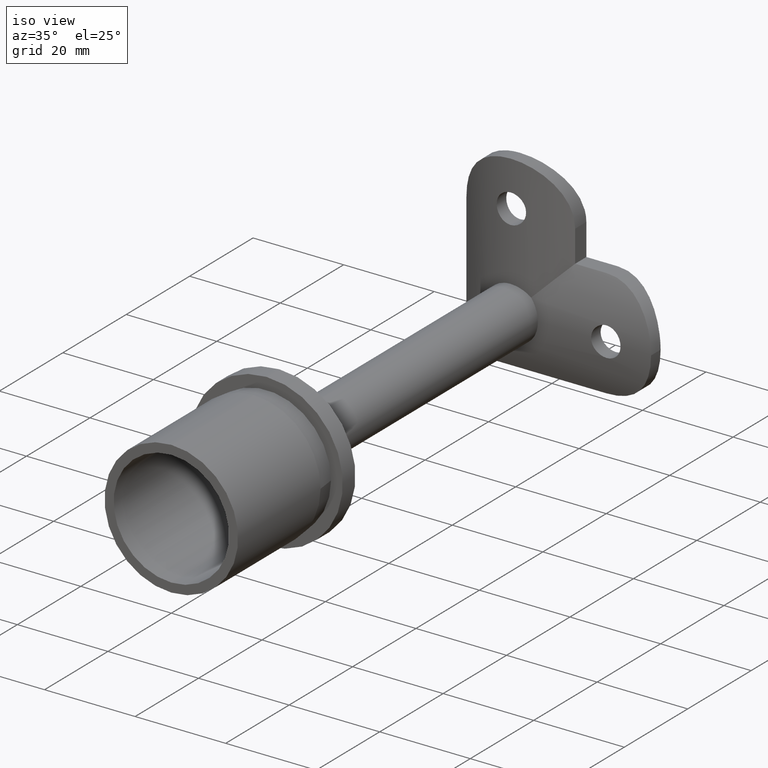
[diagram: clean part render]
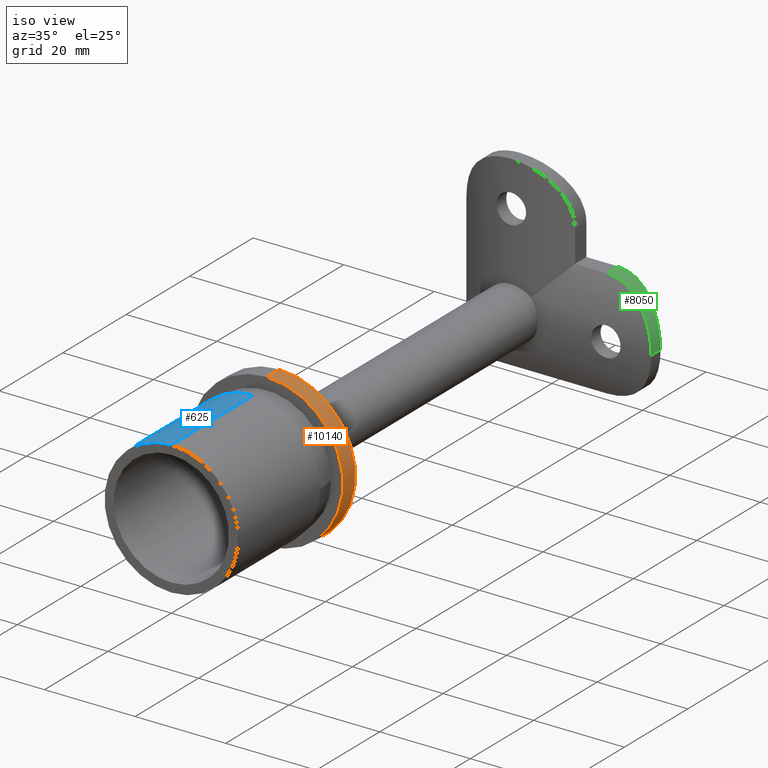
[diagram: same view with three faces highlighted in distinct colors, each labeled with its STEP entity id]
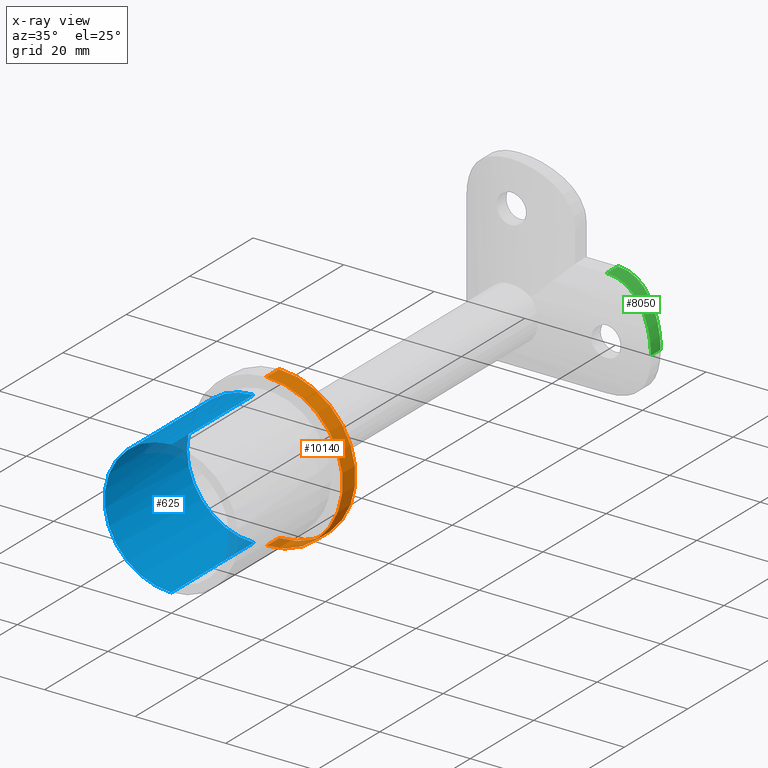
[diagram: x-ray of the same camera — body ghosted, the three highlighted faces saturated]
A machine part, iso view with three faces highlighted in distinct colors.
The next image is the same camera in x-ray (body ghosted, the three faces saturated) — at least one of them is partly hidden behind the body in this view.
Their STEP definitions:

[orange] entity #10140 — the highlighted cylindrical surface (partial cylindrical patch) has radius 16.85 mm, axis along (-0, -1, -0).
#1167 = ORIENTED_EDGE ( 'NONE', *, *, #6934, .F. ) ;
#1439 = DIRECTION ( 'NONE',  ( 0.0000000000000000000, 0.0000000000000000000, -1.000000000000000000 ) ) ;
#1588 = AXIS2_PLACEMENT_3D ( 'NONE', #6071, #2200, #1439 ) ;
#2200 = DIRECTION ( 'NONE',  ( -0.0000000000000000000, -1.000000000000000000, -0.0000000000000000000 ) ) ;
#2437 = DIRECTION ( 'NONE',  ( 0.0000000000000000000, 0.0000000000000000000, -1.000000000000000000 ) ) ;
#2650 = EDGE_CURVE ( 'NONE', #4387, #10033, #5694, .T. ) ;
#2747 = CIRCLE ( 'NONE', #1588, 16.85000000000000100 ) ;
#3384 = DIRECTION ( 'NONE',  ( -0.0000000000000000000, -1.000000000000000000, -0.0000000000000000000 ) ) ;
#3436 = ORIENTED_EDGE ( 'NONE', *, *, #2650, .F. ) ;
#3674 = CARTESIAN_POINT ( 'NONE',  ( 0.0000000000000000000, 30.00000000000000000, -16.85000000000000100 ) ) ;
#3728 = ORIENTED_EDGE ( 'NONE', *, *, #12149, .T. ) ;
#4329 = DIRECTION ( 'NONE',  ( -0.0000000000000000000, -1.000000000000000000, -0.0000000000000000000 ) ) ;
#4387 = VERTEX_POINT ( 'NONE', #5163 ) ;
#4539 = ORIENTED_EDGE ( 'NONE', *, *, #5465, .T. ) ;
#4554 = DIRECTION ( 'NONE',  ( -0.0000000000000000000, -1.000000000000000000, -0.0000000000000000000 ) ) ;
#4966 = AXIS2_PLACEMENT_3D ( 'NONE', #10147, #4329, #2437 ) ;
#5163 = CARTESIAN_POINT ( 'NONE',  ( 0.0000000000000000000, 34.00000000000000000, -16.85000000000000100 ) ) ;
#5465 = EDGE_CURVE ( 'NONE', #4387, #7723, #5777, .T. ) ;
#5694 = LINE ( 'NONE', #3674, #7503 ) ;
#5777 = CIRCLE ( 'NONE', #4966, 16.85000000000000100 ) ;
#6071 = CARTESIAN_POINT ( 'NONE',  ( 0.0000000000000000000, 30.00000000000000000, 0.0000000000000000000 ) ) ;
#6934 = EDGE_CURVE ( 'NONE', #10033, #10434, #2747, .T. ) ;
#7110 = CARTESIAN_POINT ( 'NONE',  ( 2.063529856563290200E-015, 30.00000000000000000, 16.85000000000000100 ) ) ;
#7313 = CARTESIAN_POINT ( 'NONE',  ( 0.0000000000000000000, 30.00000000000000000, 0.0000000000000000000 ) ) ;
#7503 = VECTOR ( 'NONE', #7510, 1000.000000000000000 ) ;
#7510 = DIRECTION ( 'NONE',  ( -0.0000000000000000000, -1.000000000000000000, -0.0000000000000000000 ) ) ;
#7723 = VERTEX_POINT ( 'NONE', #8806 ) ;
#7832 = CARTESIAN_POINT ( 'NONE',  ( 0.0000000000000000000, 30.00000000000000000, -16.85000000000000100 ) ) ;
#8247 = LINE ( 'NONE', #7110, #11093 ) ;
#8272 = FACE_OUTER_BOUND ( 'NONE', #12148, .T. ) ;
#8312 = AXIS2_PLACEMENT_3D ( 'NONE', #7313, #4554, #12192 ) ;
#8806 = CARTESIAN_POINT ( 'NONE',  ( 2.063529856563290200E-015, 34.00000000000000000, 16.85000000000000100 ) ) ;
#9526 = CARTESIAN_POINT ( 'NONE',  ( 2.063529856563290200E-015, 30.00000000000000000, 16.85000000000000100 ) ) ;
#9613 = CYLINDRICAL_SURFACE ( 'NONE', #8312, 16.85000000000000100 ) ;
#10033 = VERTEX_POINT ( 'NONE', #7832 ) ;
#10140 = ADVANCED_FACE ( 'NONE', ( #8272 ), #9613, .T. ) ;
#10147 = CARTESIAN_POINT ( 'NONE',  ( 0.0000000000000000000, 34.00000000000000000, 0.0000000000000000000 ) ) ;
#10434 = VERTEX_POINT ( 'NONE', #9526 ) ;
#11093 = VECTOR ( 'NONE', #3384, 1000.000000000000000 ) ;
#12148 = EDGE_LOOP ( 'NONE', ( #4539, #3728, #1167, #3436 ) ) ;
#12149 = EDGE_CURVE ( 'NONE', #7723, #10434, #8247, .T. ) ;
#12192 = DIRECTION ( 'NONE',  ( 0.0000000000000000000, 0.0000000000000000000, -1.000000000000000000 ) ) ;

[blue] entity #625 — the highlighted cylindrical surface (partial cylindrical patch) has radius 14.75 mm, axis along (-0, -1, -0).
#72 = ORIENTED_EDGE ( 'NONE', *, *, #11321, .T. ) ;
#367 = EDGE_LOOP ( 'NONE', ( #7511, #8498, #1817, #1312, #72 ) ) ;
#541 = CARTESIAN_POINT ( 'NONE',  ( 4.898587196589415800E-016, 25.99999999999999600, 0.0000000000000000000 ) ) ;
#625 = ADVANCED_FACE ( 'NONE', ( #7318 ), #7172, .T. ) ;
#698 = CARTESIAN_POINT ( 'NONE',  ( 0.0000000000000000000, 30.00000000000000000, 0.0000000000000000000 ) ) ;
#1312 = ORIENTED_EDGE ( 'NONE', *, *, #11970, .T. ) ;
#1467 = CARTESIAN_POINT ( 'NONE',  ( 1.806354028742346200E-015, 25.99999999999999600, 14.75000000000000200 ) ) ;
#1580 = VERTEX_POINT ( 'NONE', #3783 ) ;
#1794 = CARTESIAN_POINT ( 'NONE',  ( 0.0000000000000000000, 0.0000000000000000000, -14.75000000000000200 ) ) ;
#1817 = ORIENTED_EDGE ( 'NONE', *, *, #3952, .F. ) ;
#1867 = CARTESIAN_POINT ( 'NONE',  ( 0.0000000000000000000, 0.0000000000000000000, 0.0000000000000000000 ) ) ;
#1906 = DIRECTION ( 'NONE',  ( 0.0000000000000000000, 0.0000000000000000000, 1.000000000000000000 ) ) ;
#2011 = DIRECTION ( 'NONE',  ( -0.0000000000000000000, -1.000000000000000000, -0.0000000000000000000 ) ) ;
#2350 = AXIS2_PLACEMENT_3D ( 'NONE', #1867, #5697, #1906 ) ;
#2396 = VECTOR ( 'NONE', #2011, 1000.000000000000000 ) ;
#3221 = CARTESIAN_POINT ( 'NONE',  ( 1.806354028742346200E-015, 0.0000000000000000000, 14.75000000000000200 ) ) ;
#3311 = VERTEX_POINT ( 'NONE', #11909 ) ;
#3680 = DIRECTION ( 'NONE',  ( 0.0000000000000000000, 0.0000000000000000000, -1.000000000000000000 ) ) ;
#3783 = CARTESIAN_POINT ( 'NONE',  ( 0.0000000000000000000, 25.99999999999999600, -14.75000000000000200 ) ) ;
#3952 = EDGE_CURVE ( 'NONE', #1580, #3311, #10424, .T. ) ;
#4563 = CIRCLE ( 'NONE', #6748, 14.75000000000000200 ) ;
#4573 = VECTOR ( 'NONE', #5383, 1000.000000000000000 ) ;
#4869 = LINE ( 'NONE', #10165, #4573 ) ;
#4951 = LINE ( 'NONE', #8638, #2396 ) ;
#5383 = DIRECTION ( 'NONE',  ( -0.0000000000000000000, -1.000000000000000000, -0.0000000000000000000 ) ) ;
#5697 = DIRECTION ( 'NONE',  ( 0.0000000000000000000, 1.000000000000000000, 0.0000000000000000000 ) ) ;
#6111 = EDGE_CURVE ( 'NONE', #12137, #7933, #4869, .T. ) ;
#6147 = DIRECTION ( 'NONE',  ( -1.000000000000000000, -2.352167425053297400E-016, 0.0000000000000000000 ) ) ;
#6748 = AXIS2_PLACEMENT_3D ( 'NONE', #541, #11052, #11092 ) ;
#7172 = CYLINDRICAL_SURFACE ( 'NONE', #11274, 14.75000000000000200 ) ;
#7318 = FACE_OUTER_BOUND ( 'NONE', #367, .T. ) ;
#7338 = EDGE_CURVE ( 'NONE', #3311, #12137, #4563, .T. ) ;
#7511 = ORIENTED_EDGE ( 'NONE', *, *, #6111, .F. ) ;
#7769 = AXIS2_PLACEMENT_3D ( 'NONE', #7993, #8029, #6147 ) ;
#7933 = VERTEX_POINT ( 'NONE', #3221 ) ;
#7993 = CARTESIAN_POINT ( 'NONE',  ( 4.898587196589415800E-016, 25.99999999999999600, 0.0000000000000000000 ) ) ;
#8029 = DIRECTION ( 'NONE',  ( -1.224646799147353200E-016, 1.000000000000000000, -0.0000000000000000000 ) ) ;
#8498 = ORIENTED_EDGE ( 'NONE', *, *, #7338, .F. ) ;
#8638 = CARTESIAN_POINT ( 'NONE',  ( 0.0000000000000000000, 30.00000000000000000, -14.75000000000000200 ) ) ;
#8711 = VERTEX_POINT ( 'NONE', #1794 ) ;
#10165 = CARTESIAN_POINT ( 'NONE',  ( 1.806354028742346200E-015, 30.00000000000000000, 14.75000000000000200 ) ) ;
#10424 = CIRCLE ( 'NONE', #7769, 14.75000000000000200 ) ;
#11052 = DIRECTION ( 'NONE',  ( -1.224646799147353200E-016, 1.000000000000000000, -0.0000000000000000000 ) ) ;
#11092 = DIRECTION ( 'NONE',  ( -1.000000000000000000, -2.352167425053297400E-016, 0.0000000000000000000 ) ) ;
#11240 = DIRECTION ( 'NONE',  ( -0.0000000000000000000, -1.000000000000000000, -0.0000000000000000000 ) ) ;
#11259 = CIRCLE ( 'NONE', #2350, 14.75000000000000200 ) ;
#11274 = AXIS2_PLACEMENT_3D ( 'NONE', #698, #11240, #3680 ) ;
#11321 = EDGE_CURVE ( 'NONE', #8711, #7933, #11259, .T. ) ;
#11909 = CARTESIAN_POINT ( 'NONE',  ( -14.75000000000000200, 25.99999999999999600, 1.806354028742345800E-015 ) ) ;
#11970 = EDGE_CURVE ( 'NONE', #1580, #8711, #4951, .T. ) ;
#12137 = VERTEX_POINT ( 'NONE', #1467 ) ;

[green] entity #8050 — the highlighted cylindrical surface (partial cylindrical patch) has radius 12 mm, axis along (0, 1, -0).
#100 = CARTESIAN_POINT ( 'NONE',  ( 30.68443902593551100, 107.1550121062688000, 2.762361055636641400 ) ) ;
#148 = CARTESIAN_POINT ( 'NONE',  ( 30.58692257466094200, 107.2023705069698100, 3.146705672225772200 ) ) ;
#356 = CARTESIAN_POINT ( 'NONE',  ( 30.91831465222065500, 110.0465415613408300, 1.609603066487207600 ) ) ;
#689 = ORIENTED_EDGE ( 'NONE', *, *, #8454, .F. ) ;
#906 = VERTEX_POINT ( 'NONE', #10339 ) ;
#1044 = VERTEX_POINT ( 'NONE', #4541 ) ;
#1302 = CARTESIAN_POINT ( 'NONE',  ( 20.60723011561280400, 113.6663425400230900, 11.91833916329368900 ) ) ;
#1353 = CARTESIAN_POINT ( 'NONE',  ( 29.75065015629348900, 110.6829278651380800, 5.388554849466674800 ) ) ;
#1363 = ORIENTED_EDGE ( 'NONE', *, *, #5370, .F. ) ;
#1548 = CARTESIAN_POINT ( 'NONE',  ( 20.60024074777859200, 110.1381550083909200, 11.91936317759072700 ) ) ;
#2092 = CARTESIAN_POINT ( 'NONE',  ( 28.00997786817377000, 108.3358607274632000, 7.935374781564826600 ) ) ;
#2094 = CARTESIAN_POINT ( 'NONE',  ( 19.00000000000000000, 113.7231581800372300, 11.99999999999999300 ) ) ;
#2275 = CARTESIAN_POINT ( 'NONE',  ( 19.00000000000000000, 110.3615790900185700, 5.568663330206244600E-014 ) ) ;
#2438 = VECTOR ( 'NONE', #7393, 1000.000000000000000 ) ;
#2952 = CARTESIAN_POINT ( 'NONE',  ( 31.00000000000000000, 106.9999999999999100, 1.183121605080231100E-013 ) ) ;
#2972 = DIRECTION ( 'NONE',  ( -0.0000000000000000000, 1.000000000000000000, -1.862979437012538400E-014 ) ) ;
#3083 = CARTESIAN_POINT ( 'NONE',  ( 27.75066072651641500, 108.4370844586217800, 8.220336073696001800 ) ) ;
#3218 = CARTESIAN_POINT ( 'NONE',  ( 23.28381599581053900, 109.7554650673979600, 11.21608836251693300 ) ) ;
#3257 = CARTESIAN_POINT ( 'NONE',  ( 22.15743903693406100, 109.9521805400663900, 11.58394458060812800 ) ) ;
#3259 = DIRECTION ( 'NONE',  ( 0.0000000000000000000, 1.000000000000000000, -1.862979437012538400E-014 ) ) ;
#3838 = VERTEX_POINT ( 'NONE', #7606 ) ;
#4089 = CARTESIAN_POINT ( 'NONE',  ( 29.76095492662777500, 107.5914044990074200, 5.368335752008684700 ) ) ;
#4093 = CARTESIAN_POINT ( 'NONE',  ( 25.05212969703085300, 112.7147016586993300, 10.39108507386956700 ) ) ;
#4256 = CARTESIAN_POINT ( 'NONE',  ( 25.04209919819512800, 109.3420807525802900, 10.39698870510286700 ) ) ;
#4259 = CARTESIAN_POINT ( 'NONE',  ( 31.00000000000000000, 110.0000000000000100, 6.242277739764510400E-014 ) ) ;
#4302 = CARTESIAN_POINT ( 'NONE',  ( 30.20742550888348200, 110.4387421120925000, 4.306607017131811200 ) ) ;
#4459 = CARTESIAN_POINT ( 'NONE',  ( 22.91517800350726500, 109.8264408829711800, 11.35026759681939400 ) ) ;
#4541 = CARTESIAN_POINT ( 'NONE',  ( 31.00000000000000000, 110.0000000000000100, 6.242277739764510400E-014 ) ) ;
#5090 = CARTESIAN_POINT ( 'NONE',  ( 22.15883670525964500, 113.4439014111739700, 11.58362995452333300 ) ) ;
#5258 = CARTESIAN_POINT ( 'NONE',  ( 29.38116338720204400, 110.8759571773447200, 6.068923166725227200 ) ) ;
#5370 = EDGE_CURVE ( 'NONE', #7060, #906, #12204, .T. ) ;
#5418 = LINE ( 'NONE', #6176, #2438 ) ;
#5843 = CARTESIAN_POINT ( 'NONE',  ( 29.39079140925879600, 107.7595756494385500, 6.053128333627014100 ) ) ;
#6001 = CARTESIAN_POINT ( 'NONE',  ( 27.74617173690830200, 111.6583507195750800, 8.225024300692128400 ) ) ;
#6057 = CARTESIAN_POINT ( 'NONE',  ( 28.00477969475479500, 111.5409376382738500, 7.941238901632332600 ) ) ;
#6095 = CARTESIAN_POINT ( 'NONE',  ( 23.29106785160186300, 113.2074430100512600, 11.21335863990322900 ) ) ;
#6176 = CARTESIAN_POINT ( 'NONE',  ( 31.00000000000000000, 110.1847674293142300, 5.898059818322439100E-014 ) ) ;
#6269 = CARTESIAN_POINT ( 'NONE',  ( 31.00000000000000400, 110.0000000000000000, 0.8126819284076480800 ) ) ;
#6342 = CYLINDRICAL_SURFACE ( 'NONE', #11297, 12.00000000000000000 ) ;
#6817 = CARTESIAN_POINT ( 'NONE',  ( 30.21699449205965100, 107.3789405549618200, 4.281743743488902100 ) ) ;
#7060 = VERTEX_POINT ( 'NONE', #11415 ) ;
#7062 = CARTESIAN_POINT ( 'NONE',  ( 27.20618396974611000, 108.6407953123644500, 8.763933647043813800 ) ) ;
#7065 = CARTESIAN_POINT ( 'NONE',  ( 26.34080081587483200, 112.2536194085634900, 9.524471967711852100 ) ) ;
#7355 = B_SPLINE_CURVE_WITH_KNOTS ( 'NONE', 3,
 ( #2094, #9826, #1302, #8027, #5090, #9790, #6095, #10906, #4093, #7065, #7991, #6001, #6057, #9065, #10999, #5258, #1353, #4302, #10083, #11988, #10036, #356, #6269, #4259 ),
 .UNSPECIFIED., .F., .F.,
 ( 4, 2, 2, 2, 2, 2, 2, 2, 2, 2, 2, 4 ),
 ( 0.0000000000000000000, 0.002398060486567474300, 0.003597090729851211900, 0.004796120973134948600, 0.007194181459702405500, 0.009592241946269862400, 0.01079127218955360000, 0.01199030243283733200, 0.01438836291940481100, 0.01558739316268855200, 0.01678642340597229200, 0.01918448389253977300 ),
 .UNSPECIFIED. ) ;
#7393 = DIRECTION ( 'NONE',  ( 0.0000000000000000000, -1.000000000000000000, 1.862979437012538400E-014 ) ) ;
#7606 = CARTESIAN_POINT ( 'NONE',  ( 31.00000000000000000, 106.9999999999999100, 1.183121605080231100E-013 ) ) ;
#7777 = EDGE_CURVE ( 'NONE', #906, #1044, #7355, .T. ) ;
#7854 = CARTESIAN_POINT ( 'NONE',  ( 28.50272123655803500, 108.1372405296176700, 7.338130770785237000 ) ) ;
#7986 = CARTESIAN_POINT ( 'NONE',  ( 26.01031548293737200, 109.0484776833106700, 9.747130913423006900 ) ) ;
#7991 = CARTESIAN_POINT ( 'NONE',  ( 26.93313804494680500, 112.0131079788638400, 9.036121953232710200 ) ) ;
#8027 = CARTESIAN_POINT ( 'NONE',  ( 21.77406114732738400, 113.5085641038120500, 11.68169867848195200 ) ) ;
#8050 = ADVANCED_FACE ( 'NONE', ( #8572 ), #6342, .T. ) ;
#8276 = CARTESIAN_POINT ( 'NONE',  ( 19.00000000000000000, 110.1847674293144600, 12.00000000000005900 ) ) ;
#8454 = EDGE_CURVE ( 'NONE', #3838, #7060, #8792, .T. ) ;
#8572 = FACE_OUTER_BOUND ( 'NONE', #9891, .T. ) ;
#8760 = CARTESIAN_POINT ( 'NONE',  ( 28.73722163553467400, 108.0393712933900800, 7.024154184241515600 ) ) ;
#8792 = B_SPLINE_CURVE_WITH_KNOTS ( 'NONE', 3,
 ( #2952, #10612, #11555, #100, #148, #9823, #6817, #4089, #5843, #8760, #7854, #2092, #3083, #7062, #11725, #8932, #7986, #4256, #10860, #3218, #4459, #3257, #11809, #1548, #8893, #8276 ),
 .UNSPECIFIED., .F., .F.,
 ( 4, 2, 2, 2, 2, 2, 2, 2, 2, 2, 2, 2, 4 ),
 ( 0.0000000000000000000, 0.002384059085129143800, 0.003576088627693713200, 0.004768118170258283200, 0.007152177255387424800, 0.008344206797951999500, 0.009536236340516575000, 0.01072826588308115100, 0.01192029542564572800, 0.01430435451077487900, 0.01549638405333944900, 0.01668841359590402000, 0.01907247268103314700 ),
 .UNSPECIFIED. ) ;
#8893 = CARTESIAN_POINT ( 'NONE',  ( 19.80740330207494900, 110.1847674293144500, 12.00000000000006000 ) ) ;
#8932 = CARTESIAN_POINT ( 'NONE',  ( 26.32397555733931700, 108.9468684907033800, 9.513610230365664200 ) ) ;
#8990 = EDGE_CURVE ( 'NONE', #1044, #3838, #5418, .T. ) ;
#9065 = CARTESIAN_POINT ( 'NONE',  ( 28.49705589056688400, 111.3106373611490300, 7.345424566035363900 ) ) ;
#9669 = VECTOR ( 'NONE', #2972, 1000.000000000000000 ) ;
#9790 = CARTESIAN_POINT ( 'NONE',  ( 22.92020993659783600, 113.2927714675716300, 11.34859842918170100 ) ) ;
#9823 = CARTESIAN_POINT ( 'NONE',  ( 30.35285254164706400, 107.3145084336548500, 3.907847298247911500 ) ) ;
#9826 = CARTESIAN_POINT ( 'NONE',  ( 19.81276140893071900, 113.7231581800372500, 11.99999999999999500 ) ) ;
#9891 = EDGE_LOOP ( 'NONE', ( #1363, #689, #11810, #11023 ) ) ;
#9955 = DIRECTION ( 'NONE',  ( 0.0000000000000000000, 1.850371707708594100E-014, 1.000000000000000000 ) ) ;
#10036 = CARTESIAN_POINT ( 'NONE',  ( 30.67969314685646200, 110.1797507877187300, 2.782809648632179800 ) ) ;
#10083 = CARTESIAN_POINT ( 'NONE',  ( 30.34330905651216200, 110.3649130945218700, 3.935656181619910900 ) ) ;
#10339 = CARTESIAN_POINT ( 'NONE',  ( 19.00000000000000000, 113.7231581800372300, 11.99999999999999300 ) ) ;
#10612 = CARTESIAN_POINT ( 'NONE',  ( 31.00000000000000000, 106.9999999999999300, 0.8069912709887906400 ) ) ;
#10860 = CARTESIAN_POINT ( 'NONE',  ( 24.36133372156465500, 109.5230100052502600, 10.76396633648624500 ) ) ;
#10906 = CARTESIAN_POINT ( 'NONE',  ( 24.37164156526967300, 112.9295345427726100, 10.75900404641810600 ) ) ;
#10999 = CARTESIAN_POINT ( 'NONE',  ( 28.73114215791358100, 111.1975084416001800, 7.032422606849457300 ) ) ;
#11023 = ORIENTED_EDGE ( 'NONE', *, *, #7777, .F. ) ;
#11297 = AXIS2_PLACEMENT_3D ( 'NONE', #2275, #3259, #9955 ) ;
#11415 = CARTESIAN_POINT ( 'NONE',  ( 19.00000000000000000, 110.1847674293144600, 12.00000000000005900 ) ) ;
#11495 = CARTESIAN_POINT ( 'NONE',  ( 19.00000000000000000, 113.7231581800372300, 11.99999999999999300 ) ) ;
#11555 = CARTESIAN_POINT ( 'NONE',  ( 30.91944488386189200, 107.0402302127088800, 1.598076803720074100 ) ) ;
#11725 = CARTESIAN_POINT ( 'NONE',  ( 26.92102562803437100, 108.7432885086545900, 9.022568956779686300 ) ) ;
#11809 = CARTESIAN_POINT ( 'NONE',  ( 21.76902940910724400, 110.0066600114933700, 11.68291373690824700 ) ) ;
#11810 = ORIENTED_EDGE ( 'NONE', *, *, #8990, .F. ) ;
#11988 = CARTESIAN_POINT ( 'NONE',  ( 30.58024850415315000, 110.2349733740875900, 3.171418375669258400 ) ) ;
#12204 = LINE ( 'NONE', #11495, #9669 ) ;